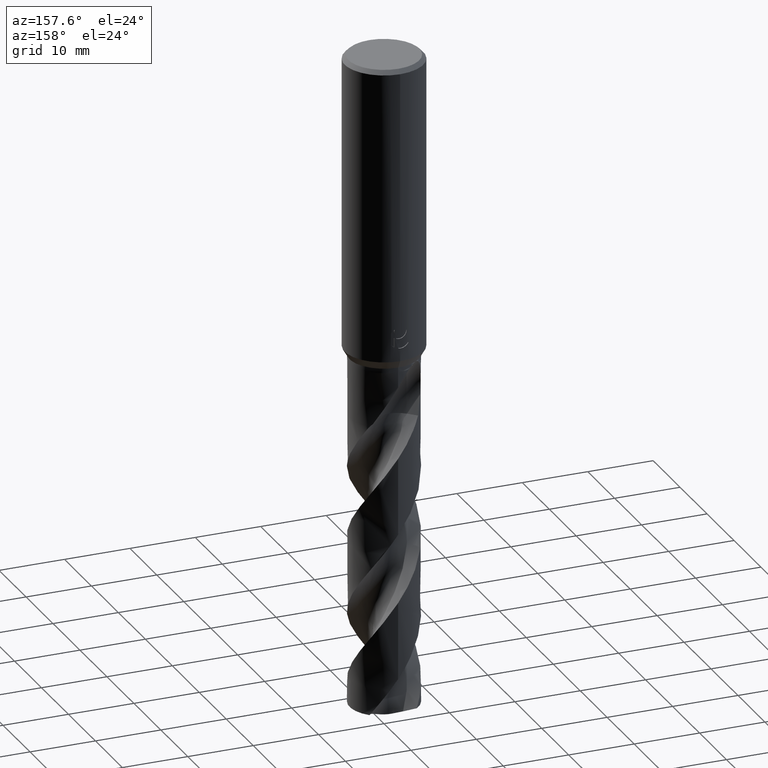
[diagram: clean part render]
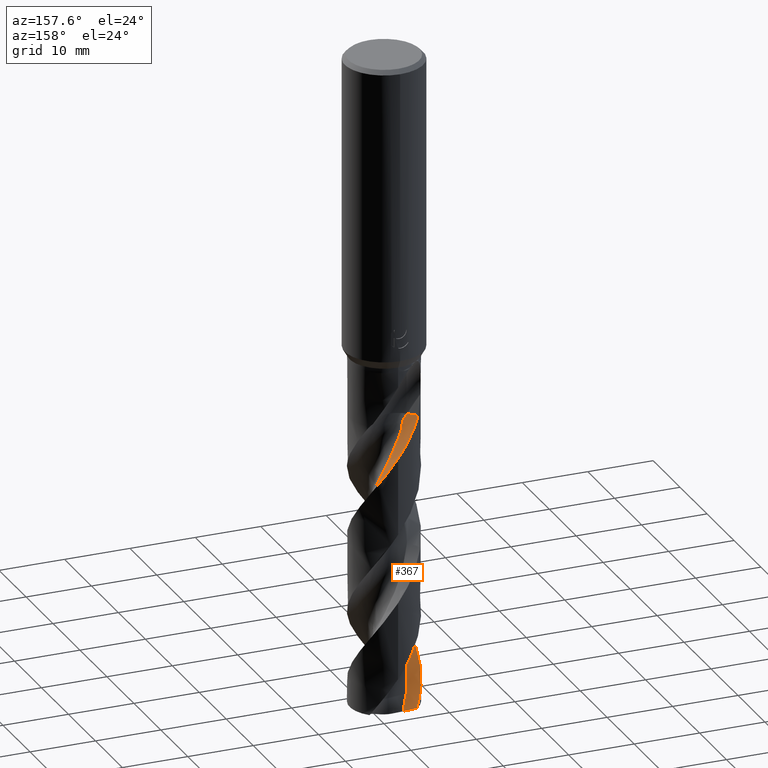
[diagram: same view with one face highlighted and labeled with its STEP entity id]
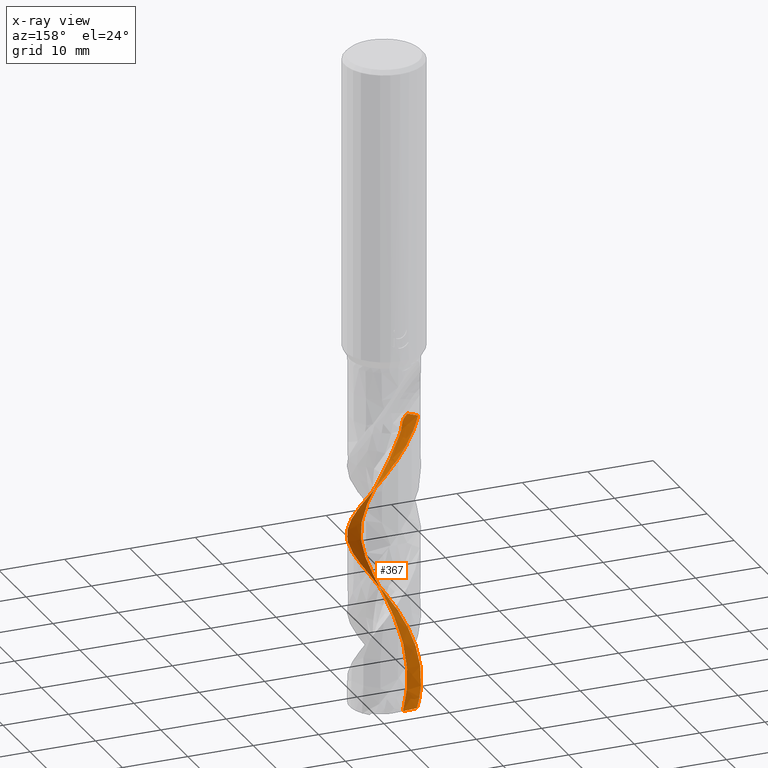
[diagram: x-ray of the same camera — body ghosted, the highlighted face saturated]
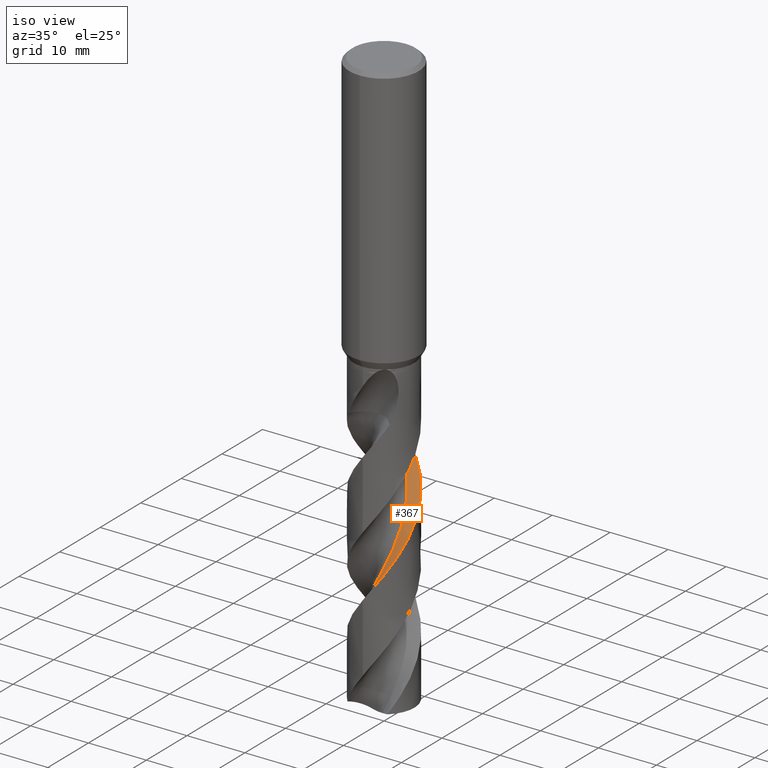
[diagram: same view with one face highlighted and labeled with its STEP entity id]
A machine part, auxiliary view. The second image highlights one B-rep face of the part: STEP entity #367.
The next image is the same camera in x-ray: the body ghosted, the highlighted face saturated — about 0% of this face is hidden behind the body in this view.
A second angle (iso view) of the same face is appended — the face is thin or edge-on in the first view.
In plain terms, the highlighted face is a freeform B-spline surface patch.
Its self-contained STEP definition (entity closure, byte-faithful):
#289=VERTEX_POINT('',#804);
#351=EDGE_CURVE('',#459,#513,#868,.T.);
#367=ADVANCED_FACE('',(#884),#885,.F.);
#421=EDGE_CURVE('',#609,#513,#947,.T.);
#427=VERTEX_POINT('',#953);
#459=VERTEX_POINT('',#986);
#513=VERTEX_POINT('',#1045);
#609=VERTEX_POINT('',#1152);
#619=EDGE_CURVE('',#669,#609,#1163,.T.);
#669=VERTEX_POINT('',#1218);
#683=EDGE_CURVE('',#427,#669,#1233,.T.);
#769=EDGE_CURVE('',#459,#289,#1329,.T.);
#773=EDGE_CURVE('',#289,#427,#1333,.T.);
#804=CARTESIAN_POINT('',(-3.64909590896185,3.77434844065602,-54.943));
#868=B_SPLINE_CURVE_WITH_KNOTS('',3,(#1751,#1752,#1753,#1754,#1755,#1756,#1757,#1758,#1759,#1760,#1761,#1762,#1763,#1764,#1765,#1766,#1767,#1768,#1769,#1770,#1771,#1772,#1773,#1774,#1775,#1776,#1777,#1778,#1779,#1780,#1781,#1782,#1783,#1784,#1785,#1786,#1787,#1788,#1789,#1790,#1791,#1792,#1793,#1794,#1795,#1796,#1797,#1798,#1799,#1800,#1801,#1802,#1803,#1804,#1805,#1806),.UNSPECIFIED.,.F.,.F.,(4,1,2,1,2,2,2,2,2,1,2,1,2,1,2,1,2,1,2,1,2,1,2,1,2,1,2,1,2,1,2,1,2,2,4),(0.0,1.05734677234702,2.11469354469404,3.17204031704105,4.22938708938807,6.34408063408211,8.45877417877614,10.5734677234702,12.6881612681642,14.8028548128583,16.9175483575523,19.0322419022463,21.1469354469404,23.2616289916344,25.3763225363284,27.4910160810225,29.6057096257165,31.7204031704105,33.8350967151046,35.9497902597986,38.0644838044927,40.1791773491867,42.2938708938807,44.4085644385748,46.5232579832688,48.6379515279628,50.7526450726569,52.8673386173509,54.9820321620449,57.096725706739,59.211419251433,61.326112796127,63.4408063408211,65.5554998855151,67.6701934302092),.UNSPECIFIED.);
#884=FACE_OUTER_BOUND('',#1859,.T.);
#885=B_SPLINE_SURFACE_WITH_KNOTS('',3,3,((#1860,#1861,#1862,#1863,#1864,#1865,#1866,#1867,#1868,#1869,#1870,#1871,#1872,#1873,#1874,#1875,#1876,#1877,#1878,#1879,#1880,#1881,#1882,#1883,#1884,#1885,#1886,#1887,#1888,#1889,#1890,#1891,#1892,#1893,#1894,#1895,#1896,#1897,#1898,#1899,#1900,#1901,#1902,#1903,#1904,#1905,#1906,#1907,#1908,#1909,#1910,#1911,#1912,#1913,#1914,#1915),(#1916,#1917,#1918,#1919,#1920,#1921,#1922,#1923,#1924,#1925,#1926,#1927,#1928,#1929,#1930,#1931,#1932,#1933,#1934,#1935,#1936,#1937,#1938,#1939,#1940,#1941,#1942,#1943,#1944,#1945,#1946,#1947,#1948,#1949,#1950,#1951,#1952,#1953,#1954,#1955,#1956,#1957,#1958,#1959,#1960,#1961,#1962,#1963,#1964,#1965,#1966,#1967,#1968,#1969,#1970,#1971),(#1972,#1973,#1974,#1975,#1976,#1977,#1978,#1979,#1980,#1981,#1982,#1983,#1984,#1985,#1986,#1987,#1988,#1989,#1990,#1991,#1992,#1993,#1994,#1995,#1996,#1997,#1998,#1999,#2000,#2001,#2002,#2003,#2004,#2005,#2006,#2007,#2008,#2009,#2010,#2011,#2012,#2013,#2014,#2015,#2016,#2017,#2018,#2019,#2020,#2021,#2022,#2023,#2024,#2025,#2026,#2027),(#2028,#2029,#2030,#2031,#2032,#2033,#2034,#2035,#2036,#2037,#2038,#2039,#2040,#2041,#2042,#2043,#2044,#2045,#2046,#2047,#2048,#2049,#2050,#2051,#2052,#2053,#2054,#2055,#2056,#2057,#2058,#2059,#2060,#2061,#2062,#2063,#2064,#2065,#2066,#2067,#2068,#2069,#2070,#2071,#2072,#2073,#2074,#2075,#2076,#2077,#2078,#2079,#2080,#2081,#2082,#2083)),.UNSPECIFIED.,.F.,.F.,.F.,(4,4),(4,1,2,1,2,2,2,2,2,1,2,1,2,1,2,1,2,1,2,1,2,1,2,1,2,1,2,1,2,1,2,1,2,2,4),(-5.3145557616166E-016,7.0),(0.0,1.05734677234702,2.11469354469404,3.17204031704105,4.22938708938807,6.34408063408211,8.45877417877614,10.5734677234702,12.6881612681642,14.8028548128583,16.9175483575523,19.0322419022463,21.1469354469404,23.2616289916344,25.3763225363284,27.4910160810225,29.6057096257165,31.7204031704105,33.8350967151046,35.9497902597986,38.0644838044927,40.1791773491867,42.2938708938807,44.4085644385748,46.5232579832688,48.6379515279628,50.7526450726569,52.8673386173509,54.9820321620449,57.096725706739,59.211419251433,61.326112796127,63.4408063408211,65.5554998855151,67.6701934302092),.UNSPECIFIED.);
#947=B_SPLINE_CURVE_WITH_KNOTS('',3,(#2543,#2544,#2545,#2546,#2547,#2548,#2549,#2550),.UNSPECIFIED.,.F.,.F.,(4,2,2,4),(0.0,2.33378989807699,3.47769819186108,4.61326621127731),.UNSPECIFIED.);
#953=CARTESIAN_POINT('',(3.98360292296817E-012,5.24992526825898,-60.4147054853088));
#986=CARTESIAN_POINT('',(-2.47487373408221,2.6001262659178,-54.943));
#1045=CARTESIAN_POINT('',(-1.75073859112972,2.81177966799354,-100.794429127511));
#1152=CARTESIAN_POINT('',(-3.37140304913221,4.0244430024914,-100.089156270102));
#1163=B_SPLINE_CURVE_WITH_KNOTS('',3,(#3378,#3379,#3380,#3381,#3382,#3383,#3384,#3385,#3386,#3387,#3388,#3389,#3390,#3391,#3392,#3393,#3394,#3395,#3396,#3397,#3398,#3399,#3400,#3401,#3402,#3403,#3404,#3405,#3406,#3407,#3408,#3409,#3410,#3411,#3412,#3413,#3414,#3415,#3416,#3417,#3418,#3419,#3420,#3421,#3422,#3423,#3424,#3425,#3426,#3427,#3428,#3429,#3430,#3431,#3432,#3433,#3434,#3435,#3436,#3437,#3438,#3439,#3440,#3441,#3442,#3443,#3444,#3445,#3446,#3447,#3448,#3449,#3450,#3451,#3452,#3453,#3454,#3455,#3456,#3457,#3458,#3459,#3460,#3461,#3462,#3463,#3464,#3465,#3466,#3467,#3468,#3469,#3470,#3471),.UNSPECIFIED.,.F.,.F.,(4,2,2,2,2,2,2,2,2,2,2,2,2,2,2,2,2,2,2,2,2,2,2,2,2,2,2,2,2,2,2,2,2,2,2,2,2,2,2,2,2,2,2,2,2,2,4),(0.0,0.218900907733007,0.355971588650264,0.432761158952666,1.00729394272988,1.20911081673772,1.33857883977056,1.46038259739679,1.62395895318792,1.80589942300578,1.8526584396365,2.5335976191504,2.98512956000297,3.43931026908279,3.92448192748065,5.25004072643065,5.86105946315065,8.60029341934533,8.95952700578667,9.31615504883598,10.751008260448,11.1055741776473,13.0102353186605,15.9002888288247,17.1059275293211,19.9661103259575,21.4090782719569,22.5415575474602,24.9588343199545,26.1224938529334,28.4067789011938,29.824062327178,32.204168807687,33.6909898064541,36.307277668272,36.7989840527583,38.6760900314306,40.121401822694,40.236382539683,43.5277732717173,44.0373212848597,45.8357752552997,48.3857974960422,50.281109758101,51.7100861150398,53.8611029458004,56.0238416263987),.UNSPECIFIED.);
#1218=CARTESIAN_POINT('',(2.72836154926986E-012,-5.24996729984524,-82.7289200116244));
#1233=B_SPLINE_CURVE_WITH_KNOTS('',3,(#3657,#3658,#3659,#3660,#3661,#3662,#3663,#3664,#3665,#3666,#3667,#3668,#3669,#3670,#3671,#3672,#3673,#3674,#3675,#3676,#3677,#3678,#3679,#3680,#3681,#3682,#3683,#3684,#3685,#3686,#3687,#3688,#3689,#3690,#3691,#3692,#3693,#3694,#3695,#3696,#3697,#3698,#3699,#3700,#3701,#3702,#3703,#3704,#3705,#3706,#3707,#3708,#3709,#3710,#3711,#3712,#3713,#3714,#3715,#3716,#3717,#3718,#3719,#3720,#3721,#3722,#3723,#3724,#3725,#3726,#3727,#3728,#3729,#3730,#3731,#3732,#3733,#3734,#3735,#3736,#3737,#3738,#3739,#3740,#3741,#3742,#3743,#3744,#3745,#3746,#3747,#3748,#3749,#3750),.UNSPECIFIED.,.F.,.F.,(4,2,2,2,2,2,2,2,2,2,2,2,2,2,2,2,2,2,2,2,2,2,2,2,2,2,2,2,2,2,2,2,2,2,2,2,2,2,2,2,2,2,2,2,2,2,4),(0.0,0.218900907733007,0.355971588650264,0.432761158952666,1.00729394272988,1.20911081673772,1.33857883977056,1.46038259739679,1.62395895318792,1.80589942300578,1.8526584396365,2.5335976191504,2.98512956000297,3.43931026908279,3.92448192748065,5.25004072643065,5.86105946315065,8.60029341934533,8.95952700578667,9.31615504883598,10.751008260448,11.1055741776473,13.0102353186605,15.9002888288247,17.1059275293211,19.9661103259575,21.4090782719569,22.5415575474602,24.9588343199545,26.1224938529334,28.4067789011938,29.824062327178,32.204168807687,33.6909898064541,36.307277668272,36.7989840527583,38.6760900314306,40.121401822694,40.236382539683,43.5277732717173,44.0373212848597,45.8357752552997,48.3857974960422,50.281109758101,51.7100861150398,53.8611029458004,56.0238416263987),.UNSPECIFIED.);
#1329=LINE('',#5251,#5252);
#1333=B_SPLINE_CURVE_WITH_KNOTS('',3,(#5257,#5258,#5259,#5260,#5261,#5262,#5263,#5264,#5265,#5266,#5267,#5268,#5269,#5270,#5271,#5272,#5273,#5274,#5275,#5276,#5277,#5278,#5279,#5280,#5281,#5282,#5283,#5284,#5285,#5286,#5287,#5288,#5289,#5290,#5291,#5292,#5293,#5294,#5295,#5296,#5297,#5298,#5299,#5300,#5301,#5302,#5303,#5304,#5305,#5306,#5307,#5308,#5309,#5310,#5311,#5312,#5313,#5314,#5315,#5316,#5317,#5318,#5319,#5320,#5321,#5322,#5323,#5324,#5325,#5326,#5327,#5328,#5329,#5330,#5331,#5332,#5333,#5334,#5335,#5336,#5337,#5338,#5339,#5340,#5341,#5342,#5343,#5344,#5345,#5346,#5347,#5348,#5349,#5350),.UNSPECIFIED.,.F.,.F.,(4,2,2,2,2,2,2,2,2,2,2,2,2,2,2,2,2,2,2,2,2,2,2,2,2,2,2,2,2,2,2,2,2,2,2,2,2,2,2,2,2,2,2,2,2,2,4),(0.0,0.218900907733007,0.355971588650264,0.432761158952666,1.00729394272988,1.20911081673772,1.33857883977056,1.46038259739679,1.62395895318792,1.80589942300578,1.8526584396365,2.5335976191504,2.98512956000297,3.43931026908279,3.92448192748065,5.25004072643065,5.86105946315065,8.60029341934533,8.95952700578667,9.31615504883598,10.751008260448,11.1055741776473,13.0102353186605,15.9002888288247,17.1059275293211,19.9661103259575,21.4090782719569,22.5415575474602,24.9588343199545,26.1224938529334,28.4067789011938,29.824062327178,32.204168807687,33.6909898064541,36.307277668272,36.7989840527583,38.6760900314306,40.121401822694,40.236382539683,43.5277732717173,44.0373212848597,45.8357752552997,48.3857974960422,50.281109758101,51.7100861150398,53.8611029458004,56.0238416263987),.UNSPECIFIED.);
#1751=CARTESIAN_POINT('',(-2.4748737340822,2.6001262659178,-54.943));
#1752=CARTESIAN_POINT('',(-2.22660323226952,2.58831108785559,-55.1877816249523));
#1753=CARTESIAN_POINT('',(-1.83116971062741,2.61479657193635,-55.6750969390619));
#1754=CARTESIAN_POINT('',(-1.63728256774363,2.7332740687947,-56.1619796187424));
#1755=CARTESIAN_POINT('',(-1.52713077923849,2.91008421236025,-56.6553591864808));
#1756=CARTESIAN_POINT('',(-1.37378108645892,3.05735487858729,-57.1496779109012));
#1757=CARTESIAN_POINT('',(-1.15630695150255,3.1371213850144,-57.6408730109222));
#1758=CARTESIAN_POINT('',(-0.799916247588327,3.20836027685924,-58.3725665016454));
#1759=CARTESIAN_POINT('',(-0.571949873151607,3.24791369605379,-58.8610470909176));
#1760=CARTESIAN_POINT('',(-0.129404134089158,3.31588236061438,-59.8439732408785));
#1761=CARTESIAN_POINT('',(0.101237605574655,3.31584459646413,-60.3349004050003));
#1762=CARTESIAN_POINT('',(0.556286339284259,3.26792282430964,-61.3143316111876));
#1763=CARTESIAN_POINT('',(0.781464994028494,3.21857453067097,-61.8043660698626));
#1764=CARTESIAN_POINT('',(1.21626005995777,3.0834201377964,-62.785332233345));
#1765=CARTESIAN_POINT('',(1.42659885713527,2.99020360602437,-63.275572432684));
#1766=CARTESIAN_POINT('',(1.82471834287933,2.77339485674471,-64.25591535167));
#1767=CARTESIAN_POINT('',(2.19779823174418,2.49996150241443,-65.2367205402932));
#1768=CARTESIAN_POINT('',(2.50681679060969,2.15903460192134,-66.2166447770555));
#1769=CARTESIAN_POINT('',(2.78601133858344,1.80391473182526,-67.1972496873164));
#1770=CARTESIAN_POINT('',(3.01896290892028,1.40525443361599,-68.1783551062178));
#1771=CARTESIAN_POINT('',(3.16448189715136,0.96842216650869,-69.1583570206863));
#1772=CARTESIAN_POINT('',(3.27647542751783,0.530401354724329,-70.1388175969809));
#1773=CARTESIAN_POINT('',(3.32895278895641,0.0715203913777617,-71.1198006136556));
#1774=CARTESIAN_POINT('',(3.28652341595611,-0.386852329391782,-72.0997858964796));
#1775=CARTESIAN_POINT('',(3.21293845883704,-0.83286145637965,-73.0802986442849));
#1776=CARTESIAN_POINT('',(3.07636565041656,-1.27406952842822,-74.0613202517419));
#1777=CARTESIAN_POINT('',(2.85303158740956,-1.67662800214856,-75.041308255077));
#1778=CARTESIAN_POINT('',(2.60618721279697,-2.05532876475196,-76.0218060020238));
#1779=CARTESIAN_POINT('',(2.30363271526679,-2.40428825198601,-77.0028175845263));
#1780=CARTESIAN_POINT('',(1.93720275694255,-2.68295400390727,-77.9828054299729));
#1781=CARTESIAN_POINT('',(1.55883467494433,-2.93030991762153,-78.9633067897233));
#1782=CARTESIAN_POINT('',(1.14143203908452,-3.12802072130539,-79.9443205650301));
#1783=CARTESIAN_POINT('',(0.693844709603016,-3.23568190068956,-80.9243083595286));
#1784=CARTESIAN_POINT('',(0.247930701547423,-3.30988196428721,-81.9048091167445));
#1785=CARTESIAN_POINT('',(-0.213744088600144,-3.32292249238006,-82.8858218739794));
#1786=CARTESIAN_POINT('',(-0.666818177557814,-3.24137287238071,-83.8658076658053));
#1787=CARTESIAN_POINT('',(-1.1048948845031,-3.12986361788871,-84.8463059657517));
#1788=CARTESIAN_POINT('',(-1.5327884805707,-2.9560290032038,-85.8273206114675));
#1789=CARTESIAN_POINT('',(-1.9147475729402,-2.69905399020593,-86.8073134774064));
#1790=CARTESIAN_POINT('',(-2.27091893277612,-2.42067439843646,-87.7878190854517));
#1791=CARTESIAN_POINT('',(-2.59268738244812,-2.08933568844391,-88.7688244526367));
#1792=CARTESIAN_POINT('',(-2.83897147357171,-1.70042462651187,-89.7487924472496));
#1793=CARTESIAN_POINT('',(-3.05306831466365,-1.30233447298213,-90.7292760079366));
#1794=CARTESIAN_POINT('',(-3.21432650511653,-0.869552936648869,-91.7103178242095));
#1795=CARTESIAN_POINT('',(-3.28309459041447,-0.414255969890846,-92.6903616870526));
#1796=CARTESIAN_POINT('',(-3.3185361797804,0.0365531402025072,-93.6708969070457));
#1797=CARTESIAN_POINT('',(-3.29203172577042,0.497624571509211,-94.651801394224));
#1798=CARTESIAN_POINT('',(-3.17291096411208,0.941842604460874,-95.6316584520552));
#1799=CARTESIAN_POINT('',(-3.0255679833199,1.36864839612105,-96.6121550485265));
#1800=CARTESIAN_POINT('',(-2.81526829124308,1.78018214337819,-97.5935705785502));
#1801=CARTESIAN_POINT('',(-2.52316433066451,2.1380683176994,-98.5738503969664));
#1802=CARTESIAN_POINT('',(-2.21150693956013,2.46776411052416,-99.5541375799459));
#1803=CARTESIAN_POINT('',(-2.03595053960006,2.61490806564498,-100.043882233457));
#1804=CARTESIAN_POINT('',(-1.66691079829135,2.87519609716982,-101.023189625601));
#1805=CARTESIAN_POINT('',(-1.45607646492274,2.97744864974534,-101.513564845193));
#1806=CARTESIAN_POINT('',(-1.23250828115598,3.05190339471903,-102.003238914648));
#1859=EDGE_LOOP('',(#5418,#5419,#5420,#5421,#5422,#5423));
#1860=CARTESIAN_POINT('',(-2.47487373415292,2.60012626584708,-54.943));
#1861=CARTESIAN_POINT('',(-2.22660323234023,2.58831108778488,-55.1877816249523));
#1862=CARTESIAN_POINT('',(-1.83116971070171,2.61479657186874,-55.6750969390622));
#1863=CARTESIAN_POINT('',(-1.63728256781698,2.73327406872792,-56.1619796187415));
#1864=CARTESIAN_POINT('',(-1.52713077932436,2.91008421230599,-56.6553591864814));
#1865=CARTESIAN_POINT('',(-1.37378108654322,3.05735487853429,-57.1496779109009));
#1866=CARTESIAN_POINT('',(-1.1563069515937,3.13712138497327,-57.6408730109222));
#1867=CARTESIAN_POINT('',(-0.79991624767948,3.20836027681811,-58.3725665016454));
#1868=CARTESIAN_POINT('',(-0.571949873236627,3.24791369602549,-58.8610470909176));
#1869=CARTESIAN_POINT('',(-0.129404134199221,3.3158823605986,-59.8439732408785));
#1870=CARTESIAN_POINT('',(0.1012376054684,3.31584459645964,-60.3349004050003));
#1871=CARTESIAN_POINT('',(0.556286339190526,3.26792282431141,-61.3143316111876));
#1872=CARTESIAN_POINT('',(0.781464993924086,3.21857453068389,-61.8043660698626));
#1873=CARTESIAN_POINT('',(1.21626005986588,3.08342013782183,-62.7853322333449));
#1874=CARTESIAN_POINT('',(1.42659885704318,2.99020360605711,-63.275572432684));
#1875=CARTESIAN_POINT('',(1.82471834278725,2.77339485678998,-64.2559153516699));
#1876=CARTESIAN_POINT('',(2.19779823166029,2.49996150247268,-65.2367205402932));
#1877=CARTESIAN_POINT('',(2.50681679054105,2.1590346019878,-66.2166447770554));
#1878=CARTESIAN_POINT('',(2.7860113385148,1.80391473190424,-67.1972496873163));
#1879=CARTESIAN_POINT('',(3.01896290886851,1.4052544337031,-68.178355106224));
#1880=CARTESIAN_POINT('',(3.16448189711466,0.968422166596628,-69.1583570206737));
#1881=CARTESIAN_POINT('',(3.27647542748738,0.530401354824788,-70.1388175969934));
#1882=CARTESIAN_POINT('',(3.32895278894576,0.0715203914758375,-71.1198006136493));
#1883=CARTESIAN_POINT('',(3.28652341595388,-0.386852329292038,-72.0997858964795));
#1884=CARTESIAN_POINT('',(3.2129384588536,-0.832861456279906,-73.0802986442849));
#1885=CARTESIAN_POINT('',(3.0763656504431,-1.27406952833002,-74.0613202517419));
#1886=CARTESIAN_POINT('',(2.85303158745,-1.67662800206013,-75.0413082550769));
#1887=CARTESIAN_POINT('',(2.60618721284993,-2.05532876466354,-76.0218060020237));
#1888=CARTESIAN_POINT('',(2.30363271533204,-2.4042882519043,-77.0028175845137));
#1889=CARTESIAN_POINT('',(1.93720275701462,-2.68295400385137,-77.9828054299979));
#1890=CARTESIAN_POINT('',(1.55883467502893,-2.93030991755311,-78.9633067896983));
#1891=CARTESIAN_POINT('',(1.14143203917275,-3.12802072126441,-79.9443205650551));
#1892=CARTESIAN_POINT('',(0.693844709699743,-3.23568190066105,-80.9243083595035));
#1893=CARTESIAN_POINT('',(0.247930701644151,-3.30988196426496,-81.9048091167694));
#1894=CARTESIAN_POINT('',(-0.213744088495001,-3.322922492375,-82.8858218739668));
#1895=CARTESIAN_POINT('',(-0.66681817746531,-3.24137287239326,-83.8658076658053));
#1896=CARTESIAN_POINT('',(-1.10489488439807,-3.12986361790752,-84.8463059657516));
#1897=CARTESIAN_POINT('',(-1.53278848047527,-2.95602900324022,-85.8273206114674));
#1898=CARTESIAN_POINT('',(-1.91474757286235,-2.6990539902569,-86.8073134774063));
#1899=CARTESIAN_POINT('',(-2.27091893268576,-2.42067439849369,-87.7878190854517));
#1900=CARTESIAN_POINT('',(-2.59268738238793,-2.08933568851721,-88.7688244526617));
#1901=CARTESIAN_POINT('',(-2.8389714734977,-1.70042462658898,-89.7487924471994));
#1902=CARTESIAN_POINT('',(-3.05306831462721,-1.30233447307176,-90.7292760079866));
#1903=CARTESIAN_POINT('',(-3.2143265050757,-0.869552936740666,-91.7103178241844));
#1904=CARTESIAN_POINT('',(-3.28309459038493,-0.41425596998939,-92.6903616870525));
#1905=CARTESIAN_POINT('',(-3.31853617977591,0.036553140103963,-93.6708969070457));
#1906=CARTESIAN_POINT('',(-3.29203172577096,0.497624571407136,-94.6518013942239));
#1907=CARTESIAN_POINT('',(-3.17291096412992,0.941842604363821,-95.6316584520551));
#1908=CARTESIAN_POINT('',(-3.02556798335027,1.36864839602399,-96.6121550485264));
#1909=CARTESIAN_POINT('',(-2.81526829128601,1.78018214329253,-97.5935705785251));
#1910=CARTESIAN_POINT('',(-2.52316433072242,2.13806831760767,-98.5738503970165));
#1911=CARTESIAN_POINT('',(-2.21150693962431,2.46776411045747,-99.5541375798958));
#1912=CARTESIAN_POINT('',(-2.03595053967306,2.61490806558013,-100.043882233457));
#1913=CARTESIAN_POINT('',(-1.6669107983706,2.87519609710498,-101.023189625601));
#1914=CARTESIAN_POINT('',(-1.45607646501037,2.9774486496909,-101.513564845192));
#1915=CARTESIAN_POINT('',(-1.23250828124361,3.05190339467085,-102.003238914648));
#1916=CARTESIAN_POINT('',(-4.12478955691485,4.2500420886142,-54.9429999999948));
#1917=CARTESIAN_POINT('',(-3.87479599219975,4.23994997345441,-55.1878317866024));
#1918=CARTESIAN_POINT('',(-3.44141901330974,4.30553091104532,-55.6729121920817));
#1919=CARTESIAN_POINT('',(-3.13152430673892,4.52835099110346,-56.1568097757579));
#1920=CARTESIAN_POINT('',(-2.85716827575113,4.82999853932397,-56.6524918858211));
#1921=CARTESIAN_POINT('',(-2.54452687729487,5.08136242443628,-57.1500053007541));
#1922=CARTESIAN_POINT('',(-2.1834948642905,5.23350648422015,-57.6420340026154));
#1923=CARTESIAN_POINT('',(-1.62430345495131,5.39624231700879,-58.3708848778022));
#1924=CARTESIAN_POINT('',(-1.24780030793216,5.48735280153744,-58.8579321361074));
#1925=CARTESIAN_POINT('',(-0.482212194086205,5.6283242594369,-59.8427521213771));
#1926=CARTESIAN_POINT('',(-0.0909872707381374,5.64678535197174,-60.3342235757224));
#1927=CARTESIAN_POINT('',(0.685203574779862,5.6032187874801,-61.3128162587168));
#1928=CARTESIAN_POINT('',(1.07022974330368,5.53960362665121,-61.8026776363773));
#1929=CARTESIAN_POINT('',(1.82223638009585,5.34247915598453,-62.784010178983));
#1930=CARTESIAN_POINT('',(2.18676465455761,5.20223463347075,-63.2742432261203));
#1931=CARTESIAN_POINT('',(2.88460505228764,4.85847668665593,-64.2544622657216));
#1932=CARTESIAN_POINT('',(3.53816366980125,4.429676512206,-65.2355086420058));
#1933=CARTESIAN_POINT('',(4.09134722858868,3.87963063780309,-66.2149770570414));
#1934=CARTESIAN_POINT('',(4.59504745031684,3.28667213694604,-67.1956643587798));
#1935=CARTESIAN_POINT('',(5.02280076485347,2.63212209976761,-68.1772485471433));
#1936=CARTESIAN_POINT('',(5.3075749437171,1.9055922667509,-69.1568560141103));
#1937=CARTESIAN_POINT('',(5.5292499372317,1.15979341613259,-70.1372856205839));
#1938=CARTESIAN_POINT('',(5.65706707512738,0.388432656580811,-71.118649979783));
#1939=CARTESIAN_POINT('',(5.62556687814311,-0.391213422448472,-72.0982283573828));
#1940=CARTESIAN_POINT('',(5.5285450517181,-1.16316586389017,-73.0787504545756));
#1941=CARTESIAN_POINT('',(5.33519912730883,-1.92076736422962,-74.0601846085417));
#1942=CARTESIAN_POINT('',(4.99259641471147,-2.62182922371243,-75.0397675580338));
#1943=CARTESIAN_POINT('',(4.5931395042525,-3.28949092194404,-76.0202629676337));
#1944=CARTESIAN_POINT('',(4.11129337065932,-3.90525890320351,-77.00167926202));
#1945=CARTESIAN_POINT('',(3.5155575465688,-4.40920395870781,-77.9812614217362));
#1946=CARTESIAN_POINT('',(2.88120352655637,-4.85968174390413,-78.96176395011));
#1947=CARTESIAN_POINT('',(2.19230554740999,-5.22949983443921,-79.9431833213198));
#1948=CARTESIAN_POINT('',(1.44414446292906,-5.45112619847417,-80.9227662618006));
#1949=CARTESIAN_POINT('',(0.682144900882087,-5.60827139860706,-81.9032670190666));
#1950=CARTESIAN_POINT('',(-0.097332028376882,-5.66962187461302,-82.8846856860456));
#1951=CARTESIAN_POINT('',(-0.871428745849789,-5.57145374477818,-83.864264463874));
#1952=CARTESIAN_POINT('',(-1.63224601767534,-5.40868720365546,-84.8447604264735));
#1953=CARTESIAN_POINT('',(-2.37051614082418,-5.15119682492505,-85.8261804758554));
#1954=CARTESIAN_POINT('',(-3.03967141540497,-4.74983130869511,-86.8057735018234));
#1955=CARTESIAN_POINT('',(-3.67067065078395,-4.29466224929268,-87.7862837845626));
#1956=CARTESIAN_POINT('',(-4.24291286664802,-3.76185055440792,-88.7676939435313));
#1957=CARTESIAN_POINT('',(-4.69402695899406,-3.12517651537619,-89.7472391910362));
#1958=CARTESIAN_POINT('',(-5.08859648819166,-2.4546209596614,-90.7277017157015));
#1959=CARTESIAN_POINT('',(-5.3980766865893,-1.73659698105582,-91.7091562283578));
#1960=CARTESIAN_POINT('',(-5.55462621984943,-0.972164732170976,-92.6888437117394));
#1961=CARTESIAN_POINT('',(-5.64563647827999,-0.199486011065641,-93.6694350280577));
#1962=CARTESIAN_POINT('',(-5.64010940726471,0.582363514534461,-94.6507157640893));
#1963=CARTESIAN_POINT('',(-5.47690070245335,1.34541546399866,-95.6300430222544));
#1964=CARTESIAN_POINT('',(-5.25064333983765,2.0899470428226,-96.6104180766879));
#1965=CARTESIAN_POINT('',(-4.93026534327886,2.8033826570548,-97.5923355244369));
#1966=CARTESIAN_POINT('',(-4.47047059813217,3.43376151053887,-98.5724321280981));
#1967=CARTESIAN_POINT('',(-3.96053519477798,4.02073404122937,-99.5528572144434));
#1968=CARTESIAN_POINT('',(-3.67335228385294,4.28524709258457,-100.042510786867));
#1969=CARTESIAN_POINT('',(-3.05566937974434,4.75733819408119,-101.021507311876));
#1970=CARTESIAN_POINT('',(-2.71461929512416,4.94824099337883,-101.512305248471));
#1971=CARTESIAN_POINT('',(-2.35668244439468,5.09657328375461,-102.001846089155));
#1972=CARTESIAN_POINT('',(-5.77470537969681,5.8999579113858,-54.9430000000052));
#1973=CARTESIAN_POINT('',(-5.52298875312798,5.89158885655525,-55.1878819083403));
#1974=CARTESIAN_POINT('',(-5.05166841797261,5.99626538145546,-55.6707274840251));
#1975=CARTESIAN_POINT('',(-4.62576584062738,6.32342765353933,-56.1516398949331));
#1976=CARTESIAN_POINT('',(-4.18720597719853,6.74991312621363,-56.6496246229958));
#1977=CARTESIAN_POINT('',(-3.71527258555126,7.10536979825455,-57.1503327044562));
#1978=CARTESIAN_POINT('',(-3.21068273703705,7.32989166791261,-57.6431949289024));
#1979=CARTESIAN_POINT('',(-2.44869074215999,7.58412418844935,-58.369203384785));
#1980=CARTESIAN_POINT('',(-1.9236504488231,7.72679178744363,-58.8548172289536));
#1981=CARTESIAN_POINT('',(-0.835020547756724,7.94076627788437,-59.8415309542309));
#1982=CARTESIAN_POINT('',(-0.283212714911625,7.97772628963786,-60.333547170716));
#1983=CARTESIAN_POINT('',(0.814121378315266,7.93851456849183,-61.3113004821024));
#1984=CARTESIAN_POINT('',(1.35899451970082,7.86063244678981,-61.8009889981145));
#1985=CARTESIAN_POINT('',(2.4282126732776,7.60153844994906,-62.7826883294176));
#1986=CARTESIAN_POINT('',(2.94693042350944,7.41426597643457,-63.2729139747475));
#1987=CARTESIAN_POINT('',(3.94449179039028,6.94355820100302,-64.2530092246933));
#1988=CARTESIAN_POINT('',(4.87852899246617,6.35939165101863,-65.2342968410541));
#1989=CARTESIAN_POINT('',(5.6758778690973,5.60022673126091,-66.2133090973599));
#1990=CARTESIAN_POINT('',(6.40408335971383,4.76942948435326,-67.1940792700241));
#1991=CARTESIAN_POINT('',(7.02663875084406,3.85898971202437,-68.1761417033898));
#1992=CARTESIAN_POINT('',(7.45066793279411,2.84276253219145,-69.1553553370305));
#1993=CARTESIAN_POINT('',(7.78202450451276,1.78918531224253,-70.1357533147849));
#1994=CARTESIAN_POINT('',(7.9851814137151,0.705345137064474,-71.1174995685353));
#1995=CARTESIAN_POINT('',(7.96461017783327,-0.395574780856574,-72.0966707023982));
#1996=CARTESIAN_POINT('',(7.84415180701857,-1.49347000627871,-73.0772023805595));
#1997=CARTESIAN_POINT('',(7.59403247238447,-2.56746528370263,-74.0590491467405));
#1998=CARTESIAN_POINT('',(7.13216134345021,-3.56703054326281,-75.0382263824483));
#1999=CARTESIAN_POINT('',(6.58009169429444,-4.5236529813239,-76.0187204116445));
#2000=CARTESIAN_POINT('',(5.91895418937032,-5.40622945726895,-77.0005404104365));
#2001=CARTESIAN_POINT('',(5.09391211095126,-6.13545420598774,-77.9797179932937));
#2002=CARTESIAN_POINT('',(4.20357260321764,-6.78905327785357,-78.9602205307998));
#2003=CARTESIAN_POINT('',(3.24317906025837,-7.33097894623485,-79.9420464527019));
#2004=CARTESIAN_POINT('',(2.19444398191153,-7.66657079171636,-80.9212239934245));
#2005=CARTESIAN_POINT('',(1.11635933436932,-7.9066605376472,-81.9017250920099));
#2006=CARTESIAN_POINT('',(0.0190801363941169,-8.01632111762469,-82.8835495354003));
#2007=CARTESIAN_POINT('',(-1.0760397579702,-7.90153519105464,-83.8627210168904));
#2008=CARTESIAN_POINT('',(-2.15959670718124,-7.68751021569938,-84.8432151321845));
#2009=CARTESIAN_POINT('',(-3.2082437173522,-7.34636487588058,-85.8250408840525));
#2010=CARTESIAN_POINT('',(-4.16459586951241,-6.80060874218453,-86.8042321934456));
#2011=CARTESIAN_POINT('',(-5.07042175733005,-6.16864998514586,-87.7847498161218));
#2012=CARTESIAN_POINT('',(-5.89313898585861,-5.43436547127105,-88.7665625413897));
#2013=CARTESIAN_POINT('',(-6.54908178627672,-4.5499284173473,-89.7456863882875));
#2014=CARTESIAN_POINT('',(-7.12412531992364,-3.60690743308031,-90.726126970174));
#2015=CARTESIAN_POINT('',(-7.58182662030495,-2.60364091659514,-91.7079962471165));
#2016=CARTESIAN_POINT('',(-7.82615768692234,-1.53007372509318,-92.6873229606826));
#2017=CARTESIAN_POINT('',(-7.97273693921275,-0.435524931654549,-93.667975924291));
#2018=CARTESIAN_POINT('',(-7.98818693068542,0.667102212130083,-94.6496274947768));
#2019=CARTESIAN_POINT('',(-7.78089059454688,1.74898858394478,-95.6284300958856));
#2020=CARTESIAN_POINT('',(-7.47571854261299,2.81124542929264,-96.6086786017847));
#2021=CARTESIAN_POINT('',(-7.04526257909332,3.82658332766801,-97.5911019318041));
#2022=CARTESIAN_POINT('',(-6.41777665168029,4.7294546500978,-98.571013439336));
#2023=CARTESIAN_POINT('',(-5.70956366383372,5.57370402537895,-99.5515772686553));
#2024=CARTESIAN_POINT('',(-5.31075419186399,5.95558590065486,-100.041140348925));
#2025=CARTESIAN_POINT('',(-4.44442779738677,6.63948050996259,-101.019823989903));
#2026=CARTESIAN_POINT('',(-3.97316213173177,6.919033078981,-101.511045758562));
#2027=CARTESIAN_POINT('',(-3.48085660755654,7.14124317287606,-102.000453263774));
#2028=CARTESIAN_POINT('',(-7.42462120245874,7.54987373415292,-54.943));
#2029=CARTESIAN_POINT('',(-7.1711815129875,7.54322774222478,-55.1879320517299));
#2030=CARTESIAN_POINT('',(-6.66191777536221,7.68699972063203,-55.6685427553051));
#2031=CARTESIAN_POINT('',(-6.12000746998618,8.11850457591487,-56.146470033689));
#2032=CARTESIAN_POINT('',(-5.51724358318844,8.66982745323162,-56.6467573405959));
#2033=CARTESIAN_POINT('',(-4.88601832152136,9.12937736241707,-57.1506600851792));
#2034=CARTESIAN_POINT('',(-4.23787064973386,9.42627673063845,-57.6443559205956));
#2035=CARTESIAN_POINT('',(-3.27307794943182,9.77200630168213,-58.3675217609418));
#2036=CARTESIAN_POINT('',(-2.59950102960281,9.9662308199135,-58.8517022741435));
#2037=CARTESIAN_POINT('',(-1.18782846155953,10.2532082497648,-59.8403098347295));
#2038=CARTESIAN_POINT('',(-0.475438029370703,10.308667118192,-60.3328704875223));
#2039=CARTESIAN_POINT('',(0.943039052157142,10.2738104586184,-61.3097849835474));
#2040=CARTESIAN_POINT('',(1.6477593421225,10.1816618349255,-61.7993004185451));
#2041=CARTESIAN_POINT('',(3.03418892046547,9.8605971759434,-62.7813664211398));
#2042=CARTESIAN_POINT('',(3.70709636710804,9.62629685776403,-63.2715847681838));
#2043=CARTESIAN_POINT('',(5.00437835380649,9.02864017695316,-64.251556138745));
#2044=CARTESIAN_POINT('',(6.21889443060713,8.28910655118882,-65.2330849427667));
#2045=CARTESIAN_POINT('',(7.26040845322912,7.32082284011829,-66.2116413773459));
#2046=CARTESIAN_POINT('',(8.2131193254317,6.25218681635297,-67.1924939414876));
#2047=CARTESIAN_POINT('',(9.0304767529132,5.085857487652,-68.1750349982249));
#2048=CARTESIAN_POINT('',(9.59376083331238,3.77993248626154,-69.1538546226355));
#2049=CARTESIAN_POINT('',(10.0347991603413,2.41857751963451,-70.134221046207));
#2050=CARTESIAN_POINT('',(10.3132956998967,1.02225732912736,-71.1163493729214));
#2051=CARTESIAN_POINT('',(10.3036534939383,-0.399935874013008,-72.0951125789647));
#2052=CARTESIAN_POINT('',(10.1597585459672,-1.82377441388897,-73.075654775187));
#2053=CARTESIAN_POINT('',(9.85286591272916,-3.21416311960223,-74.0579132113719));
#2054=CARTESIAN_POINT('',(9.27172609766959,-4.51223176491511,-75.0366856854051));
#2055=CARTESIAN_POINT('',(8.5670440587391,-5.75781513860441,-76.0171773772545));
#2056=CARTESIAN_POINT('',(7.72661473513447,-6.90720025465234,-76.9994020879428));
#2057=CARTESIAN_POINT('',(6.67226704658962,-7.86170386867581,-77.978173985032));
#2058=CARTESIAN_POINT('',(5.52594130866091,-8.71842539637295,-78.9586776912116));
#2059=CARTESIAN_POINT('',(4.29405256849562,-9.43245798636756,-79.9409095011349));
#2060=CARTESIAN_POINT('',(2.94474388122503,-9.8820149434453,-80.9196813113849));
#2061=CARTESIAN_POINT('',(1.55057338752308,-10.2050501180735,-81.9001835786437));
#2062=CARTESIAN_POINT('',(0.135492342596416,-10.3630205363838,-82.8824130553107));
#2063=CARTESIAN_POINT('',(-1.28065047243886,-10.2316158443133,-83.8611778149591));
#2064=CARTESIAN_POINT('',(-2.68694769437433,-9.96633402057359,-84.8416695929063));
#2065=CARTESIAN_POINT('',(-4.04597130465902,-9.54153262452331,-85.8239013327772));
#2066=CARTESIAN_POINT('',(-5.28952000422338,-8.85138598758065,-86.8026910491893));
#2067=CARTESIAN_POINT('',(-6.47017318325988,-8.04263790898694,-87.7832156839061));
#2068=CARTESIAN_POINT('',(-7.54336468924498,-7.10688030064071,-88.7654314479226));
#2069=CARTESIAN_POINT('',(-8.4041371256889,-5.97468030613451,-89.7441331321242));
#2070=CARTESIAN_POINT('',(-9.15965363957227,-4.75919391966995,-90.7245526778889));
#2071=CARTESIAN_POINT('',(-9.76557672877645,-3.47068503395238,-91.7068340669532));
#2072=CARTESIAN_POINT('',(-10.0976893163868,-2.08798234119059,-92.6858061540429));
#2073=CARTESIAN_POINT('',(-10.2998372377168,-0.671564228908333,-93.6665128766296));
#2074=CARTESIAN_POINT('',(-10.3362646852213,0.751841155257407,-94.6485424489789));
#2075=CARTESIAN_POINT('',(-10.0848801867861,2.1525615896638,-95.6268146660849));
#2076=CARTESIAN_POINT('',(-9.70079404518456,3.53254393000706,-96.6069416299462));
#2077=CARTESIAN_POINT('',(-9.16025948500199,4.84978384143029,-97.5898657090424));
#2078=CARTESIAN_POINT('',(-8.36508306517422,6.02514798911318,-98.5695975077646));
#2079=CARTESIAN_POINT('',(-7.45859177290321,7.12667381006666,-99.550294565856));
#2080=CARTESIAN_POINT('',(-6.94815593604387,7.62592536591183,-100.039767733662));
#2081=CARTESIAN_POINT('',(-5.83318637876051,8.52162216868627,-101.018142844852));
#2082=CARTESIAN_POINT('',(-5.23170496184556,8.88982556875312,-101.509784993167));
#2083=CARTESIAN_POINT('',(-4.60503077070761,9.18591306195983,-101.99906043828));
#2543=CARTESIAN_POINT('',(-5.477862057582,5.0117888301587,-99.2976588816033));
#2544=CARTESIAN_POINT('',(-4.78065823182996,4.7703406194681,-99.5442042505554));
#2545=CARTESIAN_POINT('',(-4.10929855769147,4.46158479810082,-99.7940095305646));
#2546=CARTESIAN_POINT('',(-3.16597900414366,3.90378648953286,-100.171102324184));
#2547=CARTESIAN_POINT('',(-2.86533286632559,3.70480728487325,-100.295758770292));
#2548=CARTESIAN_POINT('',(-2.28850700517121,3.27819381203079,-100.545357654289));
#2549=CARTESIAN_POINT('',(-2.01320948775675,3.05140285070121,-100.669897882498));
#2550=CARTESIAN_POINT('',(-1.75073859120625,2.81177966793265,-100.794429127515));
#3378=CARTESIAN_POINT('',(-3.64909590896184,3.77434844065602,-54.943));
#3379=CARTESIAN_POINT('',(-3.61929948767477,3.80315621889755,-55.0030538407762));
#3380=CARTESIAN_POINT('',(-3.58908252365148,3.83168927574042,-55.0630553335162));
#3381=CARTESIAN_POINT('',(-3.53911373707491,3.87775324057432,-55.1604911610518));
#3382=CARTESIAN_POINT('',(-3.51969603104453,3.89538777251678,-55.1979324140291));
#3383=CARTESIAN_POINT('',(-3.48906329480541,3.92278834546992,-55.2562915176481));
#3384=CARTESIAN_POINT('',(-3.47800404875347,3.93259724656328,-55.2772202189181));
#3385=CARTESIAN_POINT('',(-3.38362659816744,4.01559193547244,-55.4545990934107));
#3386=CARTESIAN_POINT('',(-3.29825963565124,4.08608776791284,-55.6069022350809));
#3387=CARTESIAN_POINT('',(-3.17625540275734,4.18026688530081,-55.8143213887134));
#3388=CARTESIAN_POINT('',(-3.14416519373107,4.20445970337173,-55.8680052713006));
#3389=CARTESIAN_POINT('',(-3.09077493614754,4.24374935127319,-55.9560843307261));
#3390=CARTESIAN_POINT('',(-3.0697635497289,4.25897353438222,-55.9904416003856));
#3391=CARTESIAN_POINT('',(-3.02868242415743,4.28827590567067,-56.057099737349));
#3392=CARTESIAN_POINT('',(-3.00865033882526,4.30235444580527,-56.0893699084209));
#3393=CARTESIAN_POINT('',(-2.96143212554323,4.33504725475963,-56.1649743588715));
#3394=CARTESIAN_POINT('',(-2.93418312791254,4.35353721857531,-56.2082520010391));
#3395=CARTESIAN_POINT('',(-2.87624950636346,4.39205700973501,-56.2997314563363));
#3396=CARTESIAN_POINT('',(-2.84557107423099,4.41199445243416,-56.3478641947908));
#3397=CARTESIAN_POINT('',(-2.80680377227609,4.43661772548717,-56.4084888271664));
#3398=CARTESIAN_POINT('',(-2.79890619401076,4.44160438580677,-56.4208306876762));
#3399=CARTESIAN_POINT('',(-2.67450350359459,4.51968590161639,-56.6152232430163));
#3400=CARTESIAN_POINT('',(-2.55608640132008,4.58763264566234,-56.799487286253));
#3401=CARTESIAN_POINT('',(-2.35675835302862,4.69205601661246,-57.1051952102065));
#3402=CARTESIAN_POINT('',(-2.27630715542816,4.73160621346397,-57.2274351509126));
#3403=CARTESIAN_POINT('',(-2.11313362249606,4.8067075138466,-57.4723206154607));
#3404=CARTESIAN_POINT('',(-2.03023037624923,4.84231219213567,-57.5952214085366));
#3405=CARTESIAN_POINT('',(-1.85668093827981,4.91158993527185,-57.8488750547625));
#3406=CARTESIAN_POINT('',(-1.76631808446371,4.94480617500988,-57.9788426658841));
#3407=CARTESIAN_POINT('',(-1.42483306597777,5.05975312458922,-58.4652332558027));
#3408=CARTESIAN_POINT('',(-1.1690392942064,5.12488231750436,-58.8194972433035));
#3409=CARTESIAN_POINT('',(-0.790022034794075,5.19156070469673,-59.3401253739892));
#3410=CARTESIAN_POINT('',(-0.66986009619093,5.20842303781896,-59.5046425503116));
#3411=CARTESIAN_POINT('',(-0.00904409493264857,5.27795276568347,-60.4056420691071));
#3412=CARTESIAN_POINT('',(0.537203504039976,5.25063270977056,-61.1353764291841));
#3413=CARTESIAN_POINT('',(1.13970077924406,5.12522380230368,-61.9679696504112));
#3414=CARTESIAN_POINT('',(1.20924295114804,5.10926297847584,-62.0644932485685));
#3415=CARTESIAN_POINT('',(1.34711735154287,5.07464696248866,-62.2568750145948));
#3416=CARTESIAN_POINT('',(1.41544346977101,5.05601497692598,-62.352724053276));
#3417=CARTESIAN_POINT('',(1.75665423078369,4.95551149505255,-62.834191292153));
#3418=CARTESIAN_POINT('',(2.02301728395983,4.85287914047549,-63.2190741290185));
#3419=CARTESIAN_POINT('',(2.34325923920313,4.6984974909184,-63.6998208636908));
#3420=CARTESIAN_POINT('',(2.40607653985117,4.66664093509554,-63.7950315627142));
#3421=CARTESIAN_POINT('',(2.80212835418108,4.4556695719022,-64.4021864330598));
#3422=CARTESIAN_POINT('',(3.11591341914442,4.24218207293702,-64.9137165657249));
#3423=CARTESIAN_POINT('',(3.84119688997788,3.62447025076603,-66.2023305884222));
#3424=CARTESIAN_POINT('',(4.21415737393959,3.18306219653668,-66.9727841313747));
#3425=CARTESIAN_POINT('',(4.63082586802766,2.48487474524726,-68.0740498210227));
#3426=CARTESIAN_POINT('',(4.73935032856651,2.27108919760572,-68.3977877175495));
#3427=CARTESIAN_POINT('',(5.05496095871106,1.52721724609669,-69.4903418170897));
#3428=CARTESIAN_POINT('',(5.19045667986347,0.971467352299722,-70.2542564897905));
#3429=CARTESIAN_POINT('',(5.25640648009845,0.119385194887019,-71.411084702624));
#3430=CARTESIAN_POINT('',(5.25509993120293,-0.167812190802243,-71.7980251812815));
#3431=CARTESIAN_POINT('',(5.21086133501694,-0.677914864087361,-72.4899736932671));
#3432=CARTESIAN_POINT('',(5.17701563716022,-0.900572239770127,-72.7938315006289));
#3433=CARTESIAN_POINT('',(5.02662114450235,-1.58915696073045,-73.7483422108489));
#3434=CARTESIAN_POINT('',(4.86030241638067,-2.04217200036389,-74.3956313114365));
#3435=CARTESIAN_POINT('',(4.52579384188653,-2.67071824949438,-75.3578526358229));
#3436=CARTESIAN_POINT('',(4.40378600036873,-2.86741970317799,-75.6699830208452));
#3437=CARTESIAN_POINT('',(4.005266290673,-3.4242793464259,-76.5972290316655));
#3438=CARTESIAN_POINT('',(3.69433931067415,-3.75769231149545,-77.2095738883067));
#3439=CARTESIAN_POINT('',(3.12690423200532,-4.22657922037617,-78.2044466909277));
#3440=CARTESIAN_POINT('',(2.89568629153933,-4.38820317579132,-78.58435297566));
#3441=CARTESIAN_POINT('',(2.24478202507903,-4.76933469455032,-79.6058015018756));
#3442=CARTESIAN_POINT('',(1.80609539507715,-4.9521964768571,-80.2435361428488));
#3443=CARTESIAN_POINT('',(1.06275108746449,-5.14977169413825,-81.2829988343998));
#3444=CARTESIAN_POINT('',(0.771239384120448,-5.20139833903256,-81.6818456860286));
#3445=CARTESIAN_POINT('',(-0.0403915628062311,-5.27547048930884,-82.7857322404187));
#3446=CARTESIAN_POINT('',(-0.56243442386245,-5.24562928091154,-83.4852270153414));
#3447=CARTESIAN_POINT('',(-1.1675856470356,-5.11942345775526,-84.3207114428928));
#3448=CARTESIAN_POINT('',(-1.26270066854507,-5.09679596957039,-84.4528322045185));
#3449=CARTESIAN_POINT('',(-1.71752189790562,-4.97508991802652,-85.0899959850711));
#3450=CARTESIAN_POINT('',(-2.06674158121035,-4.84046605782279,-85.5945513208271));
#3451=CARTESIAN_POINT('',(-2.65439869361406,-4.53861146504846,-86.4882080778054));
#3452=CARTESIAN_POINT('',(-2.89887025394502,-4.38650756357214,-86.8758338191443));
#3453=CARTESIAN_POINT('',(-3.14806668136011,-4.20148143777174,-87.2954013789742));
#3454=CARTESIAN_POINT('',(-3.16633727894605,-4.18772955901556,-87.3263158834876));
#3455=CARTESIAN_POINT('',(-3.70500189020454,-3.77674782538461,-88.2425709631004));
#3456=CARTESIAN_POINT('',(-4.14700350745004,-3.28540492973482,-89.1229022518875));
#3457=CARTESIAN_POINT('',(-4.53977747244545,-2.63875186125229,-90.1453886686359));
#3458=CARTESIAN_POINT('',(-4.5898853511423,-2.55059473082003,-90.2823762747027));
#3459=CARTESIAN_POINT('',(-4.80511763740011,-2.14503207734761,-90.9036113619405));
#3460=CARTESIAN_POINT('',(-4.94011407711188,-1.81263208011274,-91.3875734853472));
#3461=CARTESIAN_POINT('',(-5.18221729800377,-0.982028016774693,-92.5582307286149));
#3462=CARTESIAN_POINT('',(-5.25279991133121,-0.477063090736291,-93.2395088764738));
#3463=CARTESIAN_POINT('',(-5.2477491965255,0.406893814471963,-94.4365990224356));
#3464=CARTESIAN_POINT('',(-5.20501659554025,0.782713731487125,-94.9454378415959));
#3465=CARTESIAN_POINT('',(-5.05989715151675,1.42857490391253,-95.8399609238859));
#3466=CARTESIAN_POINT('',(-4.97511042234925,1.70041978614226,-96.2233458718171));
#3467=CARTESIAN_POINT('',(-4.70883567528792,2.36055683372576,-97.1877240941786));
#3468=CARTESIAN_POINT('',(-4.50084143277539,2.73648075928491,-97.7659000925195));
#3469=CARTESIAN_POINT('',(-3.99641189778187,3.4317080692648,-98.9272498182191));
#3470=CARTESIAN_POINT('',(-3.70156402771809,3.74785528909507,-99.5069103975195));
#3471=CARTESIAN_POINT('',(-3.37140304913224,4.02444300249139,-100.089156270102));
#3657=CARTESIAN_POINT('',(-3.64909590896184,3.77434844065602,-54.943));
#3658=CARTESIAN_POINT('',(-3.61929948767477,3.80315621889755,-55.0030538407762));
#3659=CARTESIAN_POINT('',(-3.58908252365148,3.83168927574042,-55.0630553335162));
#3660=CARTESIAN_POINT('',(-3.53911373707491,3.87775324057432,-55.1604911610518));
#3661=CARTESIAN_POINT('',(-3.51969603104453,3.89538777251678,-55.1979324140291));
#3662=CARTESIAN_POINT('',(-3.48906329480541,3.92278834546992,-55.2562915176481));
#3663=CARTESIAN_POINT('',(-3.47800404875347,3.93259724656328,-55.2772202189181));
#3664=CARTESIAN_POINT('',(-3.38362659816744,4.01559193547244,-55.4545990934107));
#3665=CARTESIAN_POINT('',(-3.29825963565124,4.08608776791284,-55.6069022350809));
#3666=CARTESIAN_POINT('',(-3.17625540275734,4.18026688530081,-55.8143213887134));
#3667=CARTESIAN_POINT('',(-3.14416519373107,4.20445970337173,-55.8680052713006));
#3668=CARTESIAN_POINT('',(-3.09077493614754,4.24374935127319,-55.9560843307261));
#3669=CARTESIAN_POINT('',(-3.0697635497289,4.25897353438222,-55.9904416003856));
#3670=CARTESIAN_POINT('',(-3.02868242415743,4.28827590567067,-56.057099737349));
#3671=CARTESIAN_POINT('',(-3.00865033882526,4.30235444580527,-56.0893699084209));
#3672=CARTESIAN_POINT('',(-2.96143212554323,4.33504725475963,-56.1649743588715));
#3673=CARTESIAN_POINT('',(-2.93418312791254,4.35353721857531,-56.2082520010391));
#3674=CARTESIAN_POINT('',(-2.87624950636346,4.39205700973501,-56.2997314563363));
#3675=CARTESIAN_POINT('',(-2.84557107423099,4.41199445243416,-56.3478641947908));
#3676=CARTESIAN_POINT('',(-2.80680377227609,4.43661772548717,-56.4084888271664));
#3677=CARTESIAN_POINT('',(-2.79890619401076,4.44160438580677,-56.4208306876762));
#3678=CARTESIAN_POINT('',(-2.67450350359459,4.51968590161639,-56.6152232430163));
#3679=CARTESIAN_POINT('',(-2.55608640132008,4.58763264566234,-56.799487286253));
#3680=CARTESIAN_POINT('',(-2.35675835302862,4.69205601661246,-57.1051952102065));
#3681=CARTESIAN_POINT('',(-2.27630715542816,4.73160621346397,-57.2274351509126));
#3682=CARTESIAN_POINT('',(-2.11313362249606,4.8067075138466,-57.4723206154607));
#3683=CARTESIAN_POINT('',(-2.03023037624923,4.84231219213567,-57.5952214085366));
#3684=CARTESIAN_POINT('',(-1.85668093827981,4.91158993527185,-57.8488750547625));
#3685=CARTESIAN_POINT('',(-1.76631808446371,4.94480617500988,-57.9788426658841));
#3686=CARTESIAN_POINT('',(-1.42483306597777,5.05975312458922,-58.4652332558027));
#3687=CARTESIAN_POINT('',(-1.1690392942064,5.12488231750436,-58.8194972433035));
#3688=CARTESIAN_POINT('',(-0.790022034794075,5.19156070469673,-59.3401253739892));
#3689=CARTESIAN_POINT('',(-0.66986009619093,5.20842303781896,-59.5046425503116));
#3690=CARTESIAN_POINT('',(-0.00904409493264857,5.27795276568347,-60.4056420691071));
#3691=CARTESIAN_POINT('',(0.537203504039976,5.25063270977056,-61.1353764291841));
#3692=CARTESIAN_POINT('',(1.13970077924406,5.12522380230368,-61.9679696504112));
#3693=CARTESIAN_POINT('',(1.20924295114804,5.10926297847584,-62.0644932485685));
#3694=CARTESIAN_POINT('',(1.34711735154287,5.07464696248866,-62.2568750145948));
#3695=CARTESIAN_POINT('',(1.41544346977101,5.05601497692598,-62.352724053276));
#3696=CARTESIAN_POINT('',(1.75665423078369,4.95551149505255,-62.834191292153));
#3697=CARTESIAN_POINT('',(2.02301728395983,4.85287914047549,-63.2190741290185));
#3698=CARTESIAN_POINT('',(2.34325923920313,4.6984974909184,-63.6998208636908));
#3699=CARTESIAN_POINT('',(2.40607653985117,4.66664093509554,-63.7950315627142));
#3700=CARTESIAN_POINT('',(2.80212835418108,4.4556695719022,-64.4021864330598));
#3701=CARTESIAN_POINT('',(3.11591341914442,4.24218207293702,-64.9137165657249));
#3702=CARTESIAN_POINT('',(3.84119688997788,3.62447025076603,-66.2023305884222));
#3703=CARTESIAN_POINT('',(4.21415737393959,3.18306219653668,-66.9727841313747));
#3704=CARTESIAN_POINT('',(4.63082586802766,2.48487474524726,-68.0740498210227));
#3705=CARTESIAN_POINT('',(4.73935032856651,2.27108919760572,-68.3977877175495));
#3706=CARTESIAN_POINT('',(5.05496095871106,1.52721724609669,-69.4903418170897));
#3707=CARTESIAN_POINT('',(5.19045667986347,0.971467352299722,-70.2542564897905));
#3708=CARTESIAN_POINT('',(5.25640648009845,0.119385194887019,-71.411084702624));
#3709=CARTESIAN_POINT('',(5.25509993120293,-0.167812190802243,-71.7980251812815));
#3710=CARTESIAN_POINT('',(5.21086133501694,-0.677914864087361,-72.4899736932671));
#3711=CARTESIAN_POINT('',(5.17701563716022,-0.900572239770127,-72.7938315006289));
#3712=CARTESIAN_POINT('',(5.02662114450235,-1.58915696073045,-73.7483422108489));
#3713=CARTESIAN_POINT('',(4.86030241638067,-2.04217200036389,-74.3956313114365));
#3714=CARTESIAN_POINT('',(4.52579384188653,-2.67071824949438,-75.3578526358229));
#3715=CARTESIAN_POINT('',(4.40378600036873,-2.86741970317799,-75.6699830208452));
#3716=CARTESIAN_POINT('',(4.005266290673,-3.4242793464259,-76.5972290316655));
#3717=CARTESIAN_POINT('',(3.69433931067415,-3.75769231149545,-77.2095738883067));
#3718=CARTESIAN_POINT('',(3.12690423200532,-4.22657922037617,-78.2044466909277));
#3719=CARTESIAN_POINT('',(2.89568629153933,-4.38820317579132,-78.58435297566));
#3720=CARTESIAN_POINT('',(2.24478202507903,-4.76933469455032,-79.6058015018756));
#3721=CARTESIAN_POINT('',(1.80609539507715,-4.9521964768571,-80.2435361428488));
#3722=CARTESIAN_POINT('',(1.06275108746449,-5.14977169413825,-81.2829988343998));
#3723=CARTESIAN_POINT('',(0.771239384120448,-5.20139833903256,-81.6818456860286));
#3724=CARTESIAN_POINT('',(-0.0403915628062311,-5.27547048930884,-82.7857322404187));
#3725=CARTESIAN_POINT('',(-0.56243442386245,-5.24562928091154,-83.4852270153414));
#3726=CARTESIAN_POINT('',(-1.1675856470356,-5.11942345775526,-84.3207114428928));
#3727=CARTESIAN_POINT('',(-1.26270066854507,-5.09679596957039,-84.4528322045185));
#3728=CARTESIAN_POINT('',(-1.71752189790562,-4.97508991802652,-85.0899959850711));
#3729=CARTESIAN_POINT('',(-2.06674158121035,-4.84046605782279,-85.5945513208271));
#3730=CARTESIAN_POINT('',(-2.65439869361406,-4.53861146504846,-86.4882080778054));
#3731=CARTESIAN_POINT('',(-2.89887025394502,-4.38650756357214,-86.8758338191443));
#3732=CARTESIAN_POINT('',(-3.14806668136011,-4.20148143777174,-87.2954013789742));
#3733=CARTESIAN_POINT('',(-3.16633727894605,-4.18772955901556,-87.3263158834876));
#3734=CARTESIAN_POINT('',(-3.70500189020454,-3.77674782538461,-88.2425709631004));
#3735=CARTESIAN_POINT('',(-4.14700350745004,-3.28540492973482,-89.1229022518875));
#3736=CARTESIAN_POINT('',(-4.53977747244545,-2.63875186125229,-90.1453886686359));
#3737=CARTESIAN_POINT('',(-4.5898853511423,-2.55059473082003,-90.2823762747027));
#3738=CARTESIAN_POINT('',(-4.80511763740011,-2.14503207734761,-90.9036113619405));
#3739=CARTESIAN_POINT('',(-4.94011407711188,-1.81263208011274,-91.3875734853472));
#3740=CARTESIAN_POINT('',(-5.18221729800377,-0.982028016774693,-92.5582307286149));
#3741=CARTESIAN_POINT('',(-5.25279991133121,-0.477063090736291,-93.2395088764738));
#3742=CARTESIAN_POINT('',(-5.2477491965255,0.406893814471963,-94.4365990224356));
#3743=CARTESIAN_POINT('',(-5.20501659554025,0.782713731487125,-94.9454378415959));
#3744=CARTESIAN_POINT('',(-5.05989715151675,1.42857490391253,-95.8399609238859));
#3745=CARTESIAN_POINT('',(-4.97511042234925,1.70041978614226,-96.2233458718171));
#3746=CARTESIAN_POINT('',(-4.70883567528792,2.36055683372576,-97.1877240941786));
#3747=CARTESIAN_POINT('',(-4.50084143277539,2.73648075928491,-97.7659000925195));
#3748=CARTESIAN_POINT('',(-3.99641189778187,3.4317080692648,-98.9272498182191));
#3749=CARTESIAN_POINT('',(-3.70156402771809,3.74785528909507,-99.5069103975195));
#3750=CARTESIAN_POINT('',(-3.37140304913224,4.02444300249139,-100.089156270102));
#5251=CARTESIAN_POINT('',(-2.47487373415292,2.60012626584709,-54.943));
#5252=VECTOR('',#5949,1.0);
#5257=CARTESIAN_POINT('',(-3.64909590896184,3.77434844065602,-54.943));
#5258=CARTESIAN_POINT('',(-3.61929948767477,3.80315621889755,-55.0030538407762));
#5259=CARTESIAN_POINT('',(-3.58908252365148,3.83168927574042,-55.0630553335162));
#5260=CARTESIAN_POINT('',(-3.53911373707491,3.87775324057432,-55.1604911610518));
#5261=CARTESIAN_POINT('',(-3.51969603104453,3.89538777251678,-55.1979324140291));
#5262=CARTESIAN_POINT('',(-3.48906329480541,3.92278834546992,-55.2562915176481));
#5263=CARTESIAN_POINT('',(-3.47800404875347,3.93259724656328,-55.2772202189181));
#5264=CARTESIAN_POINT('',(-3.38362659816744,4.01559193547244,-55.4545990934107));
#5265=CARTESIAN_POINT('',(-3.29825963565124,4.08608776791284,-55.6069022350809));
#5266=CARTESIAN_POINT('',(-3.17625540275734,4.18026688530081,-55.8143213887134));
#5267=CARTESIAN_POINT('',(-3.14416519373107,4.20445970337173,-55.8680052713006));
#5268=CARTESIAN_POINT('',(-3.09077493614754,4.24374935127319,-55.9560843307261));
#5269=CARTESIAN_POINT('',(-3.0697635497289,4.25897353438222,-55.9904416003856));
#5270=CARTESIAN_POINT('',(-3.02868242415743,4.28827590567067,-56.057099737349));
#5271=CARTESIAN_POINT('',(-3.00865033882526,4.30235444580527,-56.0893699084209));
#5272=CARTESIAN_POINT('',(-2.96143212554323,4.33504725475963,-56.1649743588715));
#5273=CARTESIAN_POINT('',(-2.93418312791254,4.35353721857531,-56.2082520010391));
#5274=CARTESIAN_POINT('',(-2.87624950636346,4.39205700973501,-56.2997314563363));
#5275=CARTESIAN_POINT('',(-2.84557107423099,4.41199445243416,-56.3478641947908));
#5276=CARTESIAN_POINT('',(-2.80680377227609,4.43661772548717,-56.4084888271664));
#5277=CARTESIAN_POINT('',(-2.79890619401076,4.44160438580677,-56.4208306876762));
#5278=CARTESIAN_POINT('',(-2.67450350359459,4.51968590161639,-56.6152232430163));
#5279=CARTESIAN_POINT('',(-2.55608640132008,4.58763264566234,-56.799487286253));
#5280=CARTESIAN_POINT('',(-2.35675835302862,4.69205601661246,-57.1051952102065));
#5281=CARTESIAN_POINT('',(-2.27630715542816,4.73160621346397,-57.2274351509126));
#5282=CARTESIAN_POINT('',(-2.11313362249606,4.8067075138466,-57.4723206154607));
#5283=CARTESIAN_POINT('',(-2.03023037624923,4.84231219213567,-57.5952214085366));
#5284=CARTESIAN_POINT('',(-1.85668093827981,4.91158993527185,-57.8488750547625));
#5285=CARTESIAN_POINT('',(-1.76631808446371,4.94480617500988,-57.9788426658841));
#5286=CARTESIAN_POINT('',(-1.42483306597777,5.05975312458922,-58.4652332558027));
#5287=CARTESIAN_POINT('',(-1.1690392942064,5.12488231750436,-58.8194972433035));
#5288=CARTESIAN_POINT('',(-0.790022034794075,5.19156070469673,-59.3401253739892));
#5289=CARTESIAN_POINT('',(-0.66986009619093,5.20842303781896,-59.5046425503116));
#5290=CARTESIAN_POINT('',(-0.00904409493264857,5.27795276568347,-60.4056420691071));
#5291=CARTESIAN_POINT('',(0.537203504039976,5.25063270977056,-61.1353764291841));
#5292=CARTESIAN_POINT('',(1.13970077924406,5.12522380230368,-61.9679696504112));
#5293=CARTESIAN_POINT('',(1.20924295114804,5.10926297847584,-62.0644932485685));
#5294=CARTESIAN_POINT('',(1.34711735154287,5.07464696248866,-62.2568750145948));
#5295=CARTESIAN_POINT('',(1.41544346977101,5.05601497692598,-62.352724053276));
#5296=CARTESIAN_POINT('',(1.75665423078369,4.95551149505255,-62.834191292153));
#5297=CARTESIAN_POINT('',(2.02301728395983,4.85287914047549,-63.2190741290185));
#5298=CARTESIAN_POINT('',(2.34325923920313,4.6984974909184,-63.6998208636908));
#5299=CARTESIAN_POINT('',(2.40607653985117,4.66664093509554,-63.7950315627142));
#5300=CARTESIAN_POINT('',(2.80212835418108,4.4556695719022,-64.4021864330598));
#5301=CARTESIAN_POINT('',(3.11591341914442,4.24218207293702,-64.9137165657249));
#5302=CARTESIAN_POINT('',(3.84119688997788,3.62447025076603,-66.2023305884222));
#5303=CARTESIAN_POINT('',(4.21415737393959,3.18306219653668,-66.9727841313747));
#5304=CARTESIAN_POINT('',(4.63082586802766,2.48487474524726,-68.0740498210227));
#5305=CARTESIAN_POINT('',(4.73935032856651,2.27108919760572,-68.3977877175495));
#5306=CARTESIAN_POINT('',(5.05496095871106,1.52721724609669,-69.4903418170897));
#5307=CARTESIAN_POINT('',(5.19045667986347,0.971467352299722,-70.2542564897905));
#5308=CARTESIAN_POINT('',(5.25640648009845,0.119385194887019,-71.411084702624));
#5309=CARTESIAN_POINT('',(5.25509993120293,-0.167812190802243,-71.7980251812815));
#5310=CARTESIAN_POINT('',(5.21086133501694,-0.677914864087361,-72.4899736932671));
#5311=CARTESIAN_POINT('',(5.17701563716022,-0.900572239770127,-72.7938315006289));
#5312=CARTESIAN_POINT('',(5.02662114450235,-1.58915696073045,-73.7483422108489));
#5313=CARTESIAN_POINT('',(4.86030241638067,-2.04217200036389,-74.3956313114365));
#5314=CARTESIAN_POINT('',(4.52579384188653,-2.67071824949438,-75.3578526358229));
#5315=CARTESIAN_POINT('',(4.40378600036873,-2.86741970317799,-75.6699830208452));
#5316=CARTESIAN_POINT('',(4.005266290673,-3.4242793464259,-76.5972290316655));
#5317=CARTESIAN_POINT('',(3.69433931067415,-3.75769231149545,-77.2095738883067));
#5318=CARTESIAN_POINT('',(3.12690423200532,-4.22657922037617,-78.2044466909277));
#5319=CARTESIAN_POINT('',(2.89568629153933,-4.38820317579132,-78.58435297566));
#5320=CARTESIAN_POINT('',(2.24478202507903,-4.76933469455032,-79.6058015018756));
#5321=CARTESIAN_POINT('',(1.80609539507715,-4.9521964768571,-80.2435361428488));
#5322=CARTESIAN_POINT('',(1.06275108746449,-5.14977169413825,-81.2829988343998));
#5323=CARTESIAN_POINT('',(0.771239384120448,-5.20139833903256,-81.6818456860286));
#5324=CARTESIAN_POINT('',(-0.0403915628062311,-5.27547048930884,-82.7857322404187));
#5325=CARTESIAN_POINT('',(-0.56243442386245,-5.24562928091154,-83.4852270153414));
#5326=CARTESIAN_POINT('',(-1.1675856470356,-5.11942345775526,-84.3207114428928));
#5327=CARTESIAN_POINT('',(-1.26270066854507,-5.09679596957039,-84.4528322045185));
#5328=CARTESIAN_POINT('',(-1.71752189790562,-4.97508991802652,-85.0899959850711));
#5329=CARTESIAN_POINT('',(-2.06674158121035,-4.84046605782279,-85.5945513208271));
#5330=CARTESIAN_POINT('',(-2.65439869361406,-4.53861146504846,-86.4882080778054));
#5331=CARTESIAN_POINT('',(-2.89887025394502,-4.38650756357214,-86.8758338191443));
#5332=CARTESIAN_POINT('',(-3.14806668136011,-4.20148143777174,-87.2954013789742));
#5333=CARTESIAN_POINT('',(-3.16633727894605,-4.18772955901556,-87.3263158834876));
#5334=CARTESIAN_POINT('',(-3.70500189020454,-3.77674782538461,-88.2425709631004));
#5335=CARTESIAN_POINT('',(-4.14700350745004,-3.28540492973482,-89.1229022518875));
#5336=CARTESIAN_POINT('',(-4.53977747244545,-2.63875186125229,-90.1453886686359));
#5337=CARTESIAN_POINT('',(-4.5898853511423,-2.55059473082003,-90.2823762747027));
#5338=CARTESIAN_POINT('',(-4.80511763740011,-2.14503207734761,-90.9036113619405));
#5339=CARTESIAN_POINT('',(-4.94011407711188,-1.81263208011274,-91.3875734853472));
#5340=CARTESIAN_POINT('',(-5.18221729800377,-0.982028016774693,-92.5582307286149));
#5341=CARTESIAN_POINT('',(-5.25279991133121,-0.477063090736291,-93.2395088764738));
#5342=CARTESIAN_POINT('',(-5.2477491965255,0.406893814471963,-94.4365990224356));
#5343=CARTESIAN_POINT('',(-5.20501659554025,0.782713731487125,-94.9454378415959));
#5344=CARTESIAN_POINT('',(-5.05989715151675,1.42857490391253,-95.8399609238859));
#5345=CARTESIAN_POINT('',(-4.97511042234925,1.70041978614226,-96.2233458718171));
#5346=CARTESIAN_POINT('',(-4.70883567528792,2.36055683372576,-97.1877240941786));
#5347=CARTESIAN_POINT('',(-4.50084143277539,2.73648075928491,-97.7659000925195));
#5348=CARTESIAN_POINT('',(-3.99641189778187,3.4317080692648,-98.9272498182191));
#5349=CARTESIAN_POINT('',(-3.70156402771809,3.74785528909507,-99.5069103975195));
#5350=CARTESIAN_POINT('',(-3.37140304913224,4.02444300249139,-100.089156270102));
#5418=ORIENTED_EDGE('',*,*,#421,.F.);
#5419=ORIENTED_EDGE('',*,*,#619,.F.);
#5420=ORIENTED_EDGE('',*,*,#683,.F.);
#5421=ORIENTED_EDGE('',*,*,#773,.F.);
#5422=ORIENTED_EDGE('',*,*,#769,.F.);
#5423=ORIENTED_EDGE('',*,*,#351,.T.);
#5949=DIRECTION('',(-0.707106781186546,0.707106781186549,0.0));